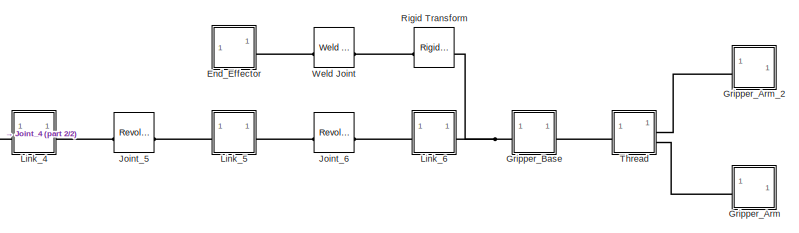
[diagram: root canvas - part 1/2, right side, full height]
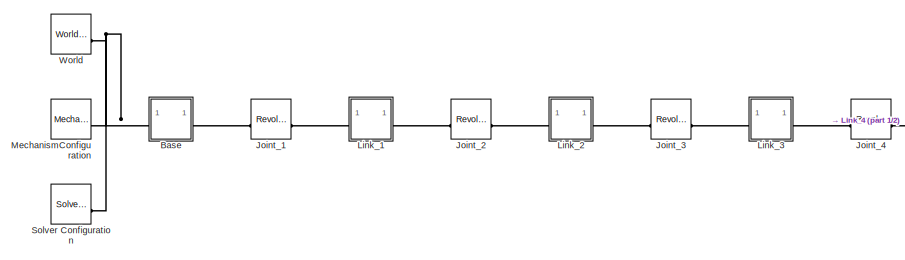
[diagram: root canvas - part 2/2, left side, full height]
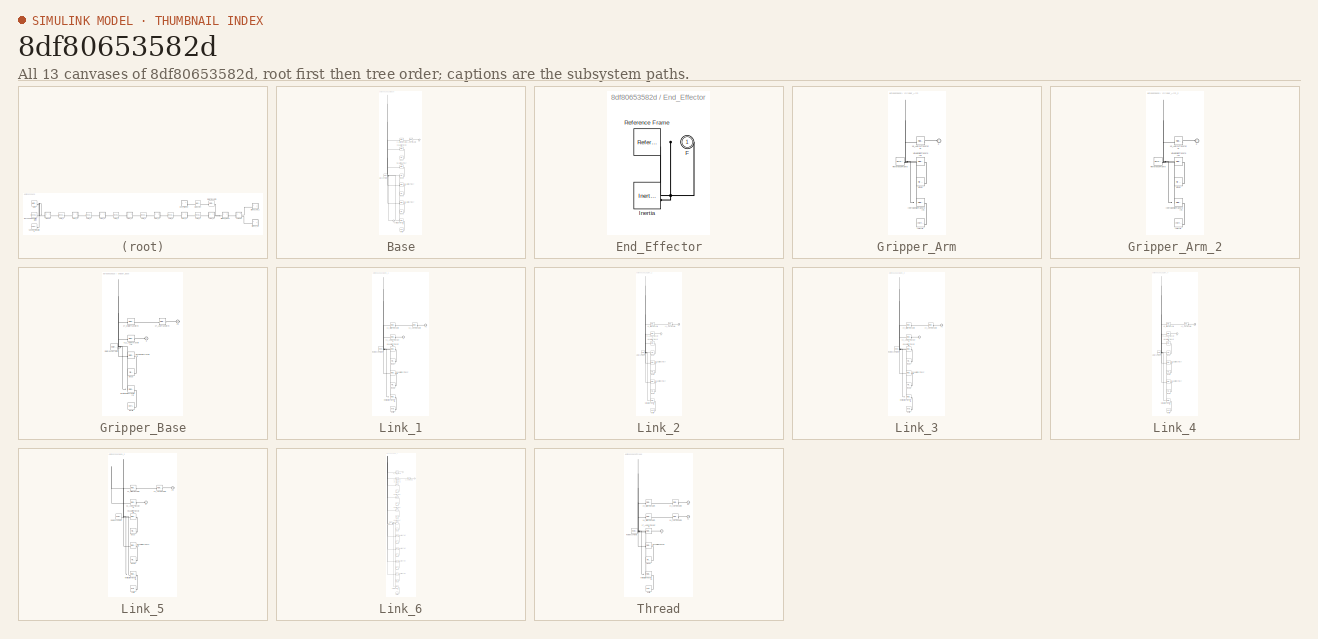
[diagram: thumbnail index - all 13 canvases of the model, root first then tree order]
MODEL slx_8df80653582d
KIND model
CONFIG AbsTol = auto
CONFIG EnableMultiTasking = off
CONFIG FixedStep = auto
CONFIG MaxStep = auto
CONFIG MinStep = auto
CONFIG RelTol = 1e-3
CONFIG SampleTimeConstraint = Unconstrained
CONFIG SolverName = VariableStepAuto
CONFIG StartTime = 0.0
CONFIG StopTime = 2
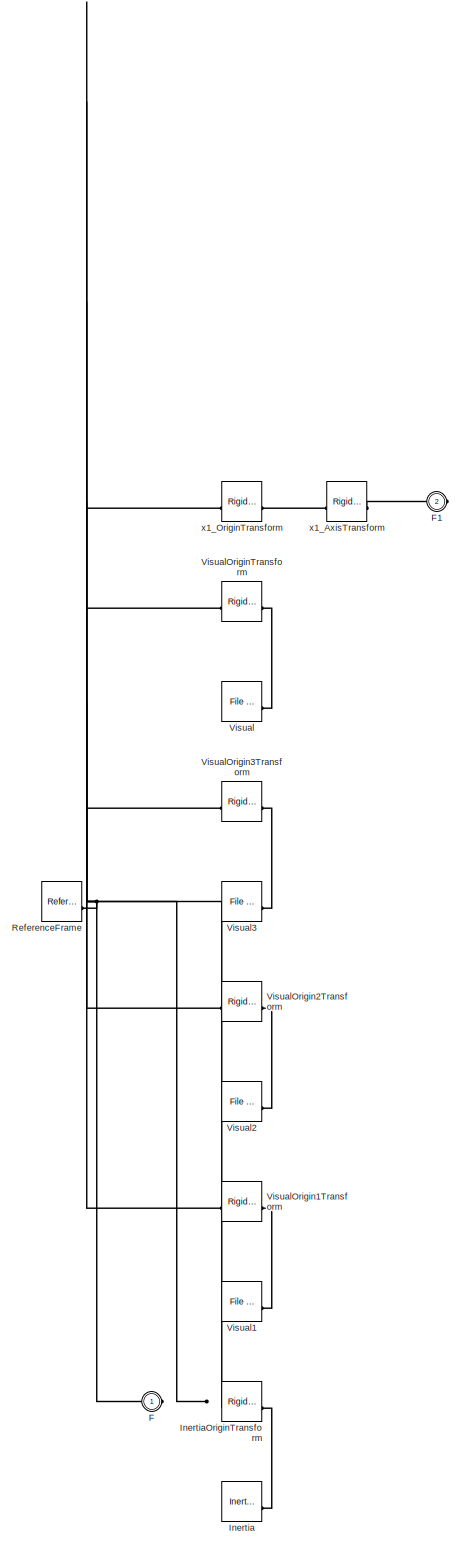
[diagram: Base - part 1/1, most of the canvas]
BLOCK [SubSystem] Base
BLOCK [PMIOPort] Base/F
  Side = Left
BLOCK [PMIOPort] Base/F1
  Port = 2
  Side = Right
BLOCK [Reference] Base/Inertia  REF=sm_lib/Body Elements/Inertia
  SourceBlock = sm_lib/Body Elements/Inertia
  SourceType = Inertia
BLOCK [Reference] Base/InertiaOriginTransform  REF=sm_lib/Frames and
Transforms/Rigid
Transform
  SourceBlock = sm_lib/Frames and\nTransforms/Rigid\nTransform
  SourceType = Rigid\nTransform
BLOCK [Reference] Base/ReferenceFrame  REF=sm_lib/Frames and
Transforms/Reference
Frame
  SourceBlock = sm_lib/Frames and\nTransforms/Reference\nFrame
  SourceType = Reference\nFrame
BLOCK [Reference] Base/Visual  REF=sm_lib/Body Elements/File Solid
  SourceBlock = sm_lib/Body Elements/File Solid
  SourceType = File Solid
BLOCK [Reference] Base/Visual1  REF=sm_lib/Body Elements/File Solid
  SourceBlock = sm_lib/Body Elements/File Solid
  SourceType = File Solid
BLOCK [Reference] Base/Visual2  REF=sm_lib/Body Elements/File Solid
  SourceBlock = sm_lib/Body Elements/File Solid
  SourceType = File Solid
BLOCK [Reference] Base/Visual3  REF=sm_lib/Body Elements/File Solid
  SourceBlock = sm_lib/Body Elements/File Solid
  SourceType = File Solid
BLOCK [Reference] Base/VisualOrigin1Transform  REF=sm_lib/Frames and
Transforms/Rigid
Transform
  SourceBlock = sm_lib/Frames and\nTransforms/Rigid\nTransform
  SourceType = Rigid\nTransform
BLOCK [Reference] Base/VisualOrigin2Transform  REF=sm_lib/Frames and
Transforms/Rigid
Transform
  SourceBlock = sm_lib/Frames and\nTransforms/Rigid\nTransform
  SourceType = Rigid\nTransform
BLOCK [Reference] Base/VisualOrigin3Transform  REF=sm_lib/Frames and
Transforms/Rigid
Transform
  SourceBlock = sm_lib/Frames and\nTransforms/Rigid\nTransform
  SourceType = Rigid\nTransform
BLOCK [Reference] Base/VisualOriginTransform  REF=sm_lib/Frames and
Transforms/Rigid
Transform
  SourceBlock = sm_lib/Frames and\nTransforms/Rigid\nTransform
  SourceType = Rigid\nTransform
BLOCK [Reference] Base/x1_AxisTransform  REF=sm_lib/Frames and
Transforms/Rigid
Transform
  SourceBlock = sm_lib/Frames and\nTransforms/Rigid\nTransform
  SourceType = Rigid\nTransform
BLOCK [Reference] Base/x1_OriginTransform  REF=sm_lib/Frames and
Transforms/Rigid
Transform
  SourceBlock = sm_lib/Frames and\nTransforms/Rigid\nTransform
  SourceType = Rigid\nTransform
BLOCK [SubSystem] End_Effector
BLOCK [PMIOPort] End_Effector/F
  Side = Right
BLOCK [Reference] End_Effector/Inertia  REF=sm_lib/Body Elements/Inertia
  SourceBlock = sm_lib/Body Elements/Inertia
  SourceType = Inertia
BLOCK [Reference] End_Effector/Reference Frame  REF=sm_lib/Frames and
Transforms/Reference
Frame
  SourceBlock = sm_lib/Frames and\nTransforms/Reference\nFrame
  SourceType = Reference\nFrame
BLOCK [SubSystem] Gripper_Arm
BLOCK [PMIOPort] Gripper_Arm/F
  Side = Left
BLOCK [Reference] Gripper_Arm/Inertia  REF=sm_lib/Body Elements/Inertia
  SourceBlock = sm_lib/Body Elements/Inertia
  SourceType = Inertia
BLOCK [Reference] Gripper_Arm/InertiaOriginTransform  REF=sm_lib/Frames and
Transforms/Rigid
Transform
  SourceBlock = sm_lib/Frames and\nTransforms/Rigid\nTransform
  SourceType = Rigid\nTransform
BLOCK [Reference] Gripper_Arm/ReferenceFrame  REF=sm_lib/Frames and
Transforms/Reference
Frame
  SourceBlock = sm_lib/Frames and\nTransforms/Reference\nFrame
  SourceType = Reference\nFrame
BLOCK [Reference] Gripper_Arm/Visual  REF=sm_lib/Body Elements/File Solid
  SourceBlock = sm_lib/Body Elements/File Solid
  SourceType = File Solid
BLOCK [Reference] Gripper_Arm/VisualOriginTransform  REF=sm_lib/Frames and
Transforms/Rigid
Transform
  SourceBlock = sm_lib/Frames and\nTransforms/Rigid\nTransform
  SourceType = Rigid\nTransform
BLOCK [Reference] Gripper_Arm/x8_AxisInvTransform  REF=sm_lib/Frames and
Transforms/Rigid
Transform
  SourceBlock = sm_lib/Frames and\nTransforms/Rigid\nTransform
  SourceType = Rigid\nTransform
BLOCK [SubSystem] Gripper_Arm_2
BLOCK [PMIOPort] Gripper_Arm_2/F
  Side = Left
BLOCK [Reference] Gripper_Arm_2/Inertia  REF=sm_lib/Body Elements/Inertia
  SourceBlock = sm_lib/Body Elements/Inertia
  SourceType = Inertia
BLOCK [Reference] Gripper_Arm_2/InertiaOriginTransform  REF=sm_lib/Frames and
Transforms/Rigid
Transform
  SourceBlock = sm_lib/Frames and\nTransforms/Rigid\nTransform
  SourceType = Rigid\nTransform
BLOCK [Reference] Gripper_Arm_2/ReferenceFrame  REF=sm_lib/Frames and
Transforms/Reference
Frame
  SourceBlock = sm_lib/Frames and\nTransforms/Reference\nFrame
  SourceType = Reference\nFrame
BLOCK [Reference] Gripper_Arm_2/Visual  REF=sm_lib/Body Elements/File Solid
  SourceBlock = sm_lib/Body Elements/File Solid
  SourceType = File Solid
BLOCK [Reference] Gripper_Arm_2/VisualOriginTransform  REF=sm_lib/Frames and
Transforms/Rigid
Transform
  SourceBlock = sm_lib/Frames and\nTransforms/Rigid\nTransform
  SourceType = Rigid\nTransform
BLOCK [Reference] Gripper_Arm_2/x9_AxisInvTransform  REF=sm_lib/Frames and
Transforms/Rigid
Transform
  SourceBlock = sm_lib/Frames and\nTransforms/Rigid\nTransform
  SourceType = Rigid\nTransform
BLOCK [SubSystem] Gripper_Base
BLOCK [PMIOPort] Gripper_Base/F
  Side = Left
BLOCK [PMIOPort] Gripper_Base/F1
  Port = 2
  Side = Right
BLOCK [Reference] Gripper_Base/Inertia  REF=sm_lib/Body Elements/Inertia
  SourceBlock = sm_lib/Body Elements/Inertia
  SourceType = Inertia
BLOCK [Reference] Gripper_Base/InertiaOriginTransform  REF=sm_lib/Frames and
Transforms/Rigid
Transform
  SourceBlock = sm_lib/Frames and\nTransforms/Rigid\nTransform
  SourceType = Rigid\nTransform
BLOCK [Reference] Gripper_Base/ReferenceFrame  REF=sm_lib/Frames and
Transforms/Reference
Frame
  SourceBlock = sm_lib/Frames and\nTransforms/Reference\nFrame
  SourceType = Reference\nFrame
BLOCK [Reference] Gripper_Base/Visual  REF=sm_lib/Body Elements/File Solid
  SourceBlock = sm_lib/Body Elements/File Solid
  SourceType = File Solid
BLOCK [Reference] Gripper_Base/VisualOriginTransform  REF=sm_lib/Frames and
Transforms/Rigid
Transform
  SourceBlock = sm_lib/Frames and\nTransforms/Rigid\nTransform
  SourceType = Rigid\nTransform
BLOCK [Reference] Gripper_Base/x12_AxisInvTransform  REF=sm_lib/Frames and
Transforms/Rigid
Transform
  SourceBlock = sm_lib/Frames and\nTransforms/Rigid\nTransform
  SourceType = Rigid\nTransform
BLOCK [Reference] Gripper_Base/x7_AxisTransform  REF=sm_lib/Frames and
Transforms/Rigid
Transform
  SourceBlock = sm_lib/Frames and\nTransforms/Rigid\nTransform
  SourceType = Rigid\nTransform
BLOCK [Reference] Gripper_Base/x7_OriginTransform  REF=sm_lib/Frames and
Transforms/Rigid
Transform
  SourceBlock = sm_lib/Frames and\nTransforms/Rigid\nTransform
  SourceType = Rigid\nTransform
BLOCK [Reference] Joint_1  REF=sm_lib/Joints/Revolute Joint
  SourceBlock = sm_lib/Joints/Revolute Joint
  SourceType = Revolute Joint
BLOCK [Reference] Joint_2  REF=sm_lib/Joints/Revolute Joint
  SourceBlock = sm_lib/Joints/Revolute Joint
  SourceType = Revolute Joint
BLOCK [Reference] Joint_3  REF=sm_lib/Joints/Revolute Joint
  SourceBlock = sm_lib/Joints/Revolute Joint
  SourceType = Revolute Joint
BLOCK [Reference] Joint_4  REF=sm_lib/Joints/Revolute Joint
  SourceBlock = sm_lib/Joints/Revolute Joint
  SourceType = Revolute Joint
BLOCK [Reference] Joint_5  REF=sm_lib/Joints/Revolute Joint
  SourceBlock = sm_lib/Joints/Revolute Joint
  SourceType = Revolute Joint
BLOCK [Reference] Joint_6  REF=sm_lib/Joints/Revolute Joint
  SourceBlock = sm_lib/Joints/Revolute Joint
  SourceType = Revolute Joint
BLOCK [SubSystem] Link_1
BLOCK [PMIOPort] Link_1/F
  Side = Left
BLOCK [PMIOPort] Link_1/F1
  Port = 2
  Side = Right
BLOCK [Reference] Link_1/Inertia  REF=sm_lib/Body Elements/Inertia
  SourceBlock = sm_lib/Body Elements/Inertia
  SourceType = Inertia
BLOCK [Reference] Link_1/InertiaOriginTransform  REF=sm_lib/Frames and
Transforms/Rigid
Transform
  SourceBlock = sm_lib/Frames and\nTransforms/Rigid\nTransform
  SourceType = Rigid\nTransform
BLOCK [Reference] Link_1/ReferenceFrame  REF=sm_lib/Frames and
Transforms/Reference
Frame
  SourceBlock = sm_lib/Frames and\nTransforms/Reference\nFrame
  SourceType = Reference\nFrame
BLOCK [Reference] Link_1/Visual  REF=sm_lib/Body Elements/File Solid
  SourceBlock = sm_lib/Body Elements/File Solid
  SourceType = File Solid
BLOCK [Reference] Link_1/Visual1  REF=sm_lib/Body Elements/File Solid
  SourceBlock = sm_lib/Body Elements/File Solid
  SourceType = File Solid
BLOCK [Reference] Link_1/VisualOrigin1Transform  REF=sm_lib/Frames and
Transforms/Rigid
Transform
  SourceBlock = sm_lib/Frames and\nTransforms/Rigid\nTransform
  SourceType = Rigid\nTransform
BLOCK [Reference] Link_1/VisualOriginTransform  REF=sm_lib/Frames and
Transforms/Rigid
Transform
  SourceBlock = sm_lib/Frames and\nTransforms/Rigid\nTransform
  SourceType = Rigid\nTransform
BLOCK [Reference] Link_1/x1_AxisInvTransform  REF=sm_lib/Frames and
Transforms/Rigid
Transform
  SourceBlock = sm_lib/Frames and\nTransforms/Rigid\nTransform
  SourceType = Rigid\nTransform
BLOCK [Reference] Link_1/x2_AxisTransform  REF=sm_lib/Frames and
Transforms/Rigid
Transform
  SourceBlock = sm_lib/Frames and\nTransforms/Rigid\nTransform
  SourceType = Rigid\nTransform
BLOCK [Reference] Link_1/x2_OriginTransform  REF=sm_lib/Frames and
Transforms/Rigid
Transform
  SourceBlock = sm_lib/Frames and\nTransforms/Rigid\nTransform
  SourceType = Rigid\nTransform
BLOCK [SubSystem] Link_2
BLOCK [PMIOPort] Link_2/F
  Side = Left
BLOCK [PMIOPort] Link_2/F1
  Port = 2
  Side = Right
BLOCK [Reference] Link_2/Inertia  REF=sm_lib/Body Elements/Inertia
  SourceBlock = sm_lib/Body Elements/Inertia
  SourceType = Inertia
BLOCK [Reference] Link_2/InertiaOriginTransform  REF=sm_lib/Frames and
Transforms/Rigid
Transform
  SourceBlock = sm_lib/Frames and\nTransforms/Rigid\nTransform
  SourceType = Rigid\nTransform
BLOCK [Reference] Link_2/ReferenceFrame  REF=sm_lib/Frames and
Transforms/Reference
Frame
  SourceBlock = sm_lib/Frames and\nTransforms/Reference\nFrame
  SourceType = Reference\nFrame
BLOCK [Reference] Link_2/Visual  REF=sm_lib/Body Elements/File Solid
  SourceBlock = sm_lib/Body Elements/File Solid
  SourceType = File Solid
BLOCK [Reference] Link_2/Visual1  REF=sm_lib/Body Elements/File Solid
  SourceBlock = sm_lib/Body Elements/File Solid
  SourceType = File Solid
BLOCK [Reference] Link_2/Visual2  REF=sm_lib/Body Elements/File Solid
  SourceBlock = sm_lib/Body Elements/File Solid
  SourceType = File Solid
BLOCK [Reference] Link_2/VisualOrigin1Transform  REF=sm_lib/Frames and
Transforms/Rigid
Transform
  SourceBlock = sm_lib/Frames and\nTransforms/Rigid\nTransform
  SourceType = Rigid\nTransform
BLOCK [Reference] Link_2/VisualOrigin2Transform  REF=sm_lib/Frames and
Transforms/Rigid
Transform
  SourceBlock = sm_lib/Frames and\nTransforms/Rigid\nTransform
  SourceType = Rigid\nTransform
BLOCK [Reference] Link_2/VisualOriginTransform  REF=sm_lib/Frames and
Transforms/Rigid
Transform
  SourceBlock = sm_lib/Frames and\nTransforms/Rigid\nTransform
  SourceType = Rigid\nTransform
BLOCK [Reference] Link_2/x2_AxisInvTransform  REF=sm_lib/Frames and
Transforms/Rigid
Transform
  SourceBlock = sm_lib/Frames and\nTransforms/Rigid\nTransform
  SourceType = Rigid\nTransform
BLOCK [Reference] Link_2/x3_AxisTransform  REF=sm_lib/Frames and
Transforms/Rigid
Transform
  SourceBlock = sm_lib/Frames and\nTransforms/Rigid\nTransform
  SourceType = Rigid\nTransform
BLOCK [Reference] Link_2/x3_OriginTransform  REF=sm_lib/Frames and
Transforms/Rigid
Transform
  SourceBlock = sm_lib/Frames and\nTransforms/Rigid\nTransform
  SourceType = Rigid\nTransform
BLOCK [SubSystem] Link_3
BLOCK [PMIOPort] Link_3/F
  Side = Left
BLOCK [PMIOPort] Link_3/F1
  Port = 2
  Side = Right
BLOCK [Reference] Link_3/Inertia  REF=sm_lib/Body Elements/Inertia
  SourceBlock = sm_lib/Body Elements/Inertia
  SourceType = Inertia
BLOCK [Reference] Link_3/InertiaOriginTransform  REF=sm_lib/Frames and
Transforms/Rigid
Transform
  SourceBlock = sm_lib/Frames and\nTransforms/Rigid\nTransform
  SourceType = Rigid\nTransform
BLOCK [Reference] Link_3/ReferenceFrame  REF=sm_lib/Frames and
Transforms/Reference
Frame
  SourceBlock = sm_lib/Frames and\nTransforms/Reference\nFrame
  SourceType = Reference\nFrame
BLOCK [Reference] Link_3/Visual  REF=sm_lib/Body Elements/File Solid
  SourceBlock = sm_lib/Body Elements/File Solid
  SourceType = File Solid
BLOCK [Reference] Link_3/Visual1  REF=sm_lib/Body Elements/File Solid
  SourceBlock = sm_lib/Body Elements/File Solid
  SourceType = File Solid
BLOCK [Reference] Link_3/VisualOrigin1Transform  REF=sm_lib/Frames and
Transforms/Rigid
Transform
  SourceBlock = sm_lib/Frames and\nTransforms/Rigid\nTransform
  SourceType = Rigid\nTransform
BLOCK [Reference] Link_3/VisualOriginTransform  REF=sm_lib/Frames and
Transforms/Rigid
Transform
  SourceBlock = sm_lib/Frames and\nTransforms/Rigid\nTransform
  SourceType = Rigid\nTransform
BLOCK [Reference] Link_3/x3_AxisInvTransform  REF=sm_lib/Frames and
Transforms/Rigid
Transform
  SourceBlock = sm_lib/Frames and\nTransforms/Rigid\nTransform
  SourceType = Rigid\nTransform
BLOCK [Reference] Link_3/x4_AxisTransform  REF=sm_lib/Frames and
Transforms/Rigid
Transform
  SourceBlock = sm_lib/Frames and\nTransforms/Rigid\nTransform
  SourceType = Rigid\nTransform
BLOCK [Reference] Link_3/x4_OriginTransform  REF=sm_lib/Frames and
Transforms/Rigid
Transform
  SourceBlock = sm_lib/Frames and\nTransforms/Rigid\nTransform
  SourceType = Rigid\nTransform
BLOCK [SubSystem] Link_4
BLOCK [PMIOPort] Link_4/F
  Side = Left
BLOCK [PMIOPort] Link_4/F1
  Port = 2
  Side = Right
BLOCK [Reference] Link_4/Inertia  REF=sm_lib/Body Elements/Inertia
  SourceBlock = sm_lib/Body Elements/Inertia
  SourceType = Inertia
BLOCK [Reference] Link_4/InertiaOriginTransform  REF=sm_lib/Frames and
Transforms/Rigid
Transform
  SourceBlock = sm_lib/Frames and\nTransforms/Rigid\nTransform
  SourceType = Rigid\nTransform
BLOCK [Reference] Link_4/ReferenceFrame  REF=sm_lib/Frames and
Transforms/Reference
Frame
  SourceBlock = sm_lib/Frames and\nTransforms/Reference\nFrame
  SourceType = Reference\nFrame
BLOCK [Reference] Link_4/Visual  REF=sm_lib/Body Elements/File Solid
  SourceBlock = sm_lib/Body Elements/File Solid
  SourceType = File Solid
BLOCK [Reference] Link_4/Visual1  REF=sm_lib/Body Elements/File Solid
  SourceBlock = sm_lib/Body Elements/File Solid
  SourceType = File Solid
BLOCK [Reference] Link_4/Visual2  REF=sm_lib/Body Elements/File Solid
  SourceBlock = sm_lib/Body Elements/File Solid
  SourceType = File Solid
BLOCK [Reference] Link_4/VisualOrigin1Transform  REF=sm_lib/Frames and
Transforms/Rigid
Transform
  SourceBlock = sm_lib/Frames and\nTransforms/Rigid\nTransform
  SourceType = Rigid\nTransform
BLOCK [Reference] Link_4/VisualOrigin2Transform  REF=sm_lib/Frames and
Transforms/Rigid
Transform
  SourceBlock = sm_lib/Frames and\nTransforms/Rigid\nTransform
  SourceType = Rigid\nTransform
BLOCK [Reference] Link_4/VisualOriginTransform  REF=sm_lib/Frames and
Transforms/Rigid
Transform
  SourceBlock = sm_lib/Frames and\nTransforms/Rigid\nTransform
  SourceType = Rigid\nTransform
BLOCK [Reference] Link_4/x4_AxisInvTransform  REF=sm_lib/Frames and
Transforms/Rigid
Transform
  SourceBlock = sm_lib/Frames and\nTransforms/Rigid\nTransform
  SourceType = Rigid\nTransform
BLOCK [Reference] Link_4/x5_AxisTransform  REF=sm_lib/Frames and
Transforms/Rigid
Transform
  SourceBlock = sm_lib/Frames and\nTransforms/Rigid\nTransform
  SourceType = Rigid\nTransform
BLOCK [Reference] Link_4/x5_OriginTransform  REF=sm_lib/Frames and
Transforms/Rigid
Transform
  SourceBlock = sm_lib/Frames and\nTransforms/Rigid\nTransform
  SourceType = Rigid\nTransform
BLOCK [SubSystem] Link_5
BLOCK [PMIOPort] Link_5/F
  Side = Left
BLOCK [PMIOPort] Link_5/F1
  Port = 2
  Side = Right
BLOCK [Reference] Link_5/Inertia  REF=sm_lib/Body Elements/Inertia
  SourceBlock = sm_lib/Body Elements/Inertia
  SourceType = Inertia
BLOCK [Reference] Link_5/InertiaOriginTransform  REF=sm_lib/Frames and
Transforms/Rigid
Transform
  SourceBlock = sm_lib/Frames and\nTransforms/Rigid\nTransform
  SourceType = Rigid\nTransform
BLOCK [Reference] Link_5/ReferenceFrame  REF=sm_lib/Frames and
Transforms/Reference
Frame
  SourceBlock = sm_lib/Frames and\nTransforms/Reference\nFrame
  SourceType = Reference\nFrame
BLOCK [Reference] Link_5/Visual  REF=sm_lib/Body Elements/File Solid
  SourceBlock = sm_lib/Body Elements/File Solid
  SourceType = File Solid
BLOCK [Reference] Link_5/Visual1  REF=sm_lib/Body Elements/File Solid
  SourceBlock = sm_lib/Body Elements/File Solid
  SourceType = File Solid
BLOCK [Reference] Link_5/VisualOrigin1Transform  REF=sm_lib/Frames and
Transforms/Rigid
Transform
  SourceBlock = sm_lib/Frames and\nTransforms/Rigid\nTransform
  SourceType = Rigid\nTransform
BLOCK [Reference] Link_5/VisualOriginTransform  REF=sm_lib/Frames and
Transforms/Rigid
Transform
  SourceBlock = sm_lib/Frames and\nTransforms/Rigid\nTransform
  SourceType = Rigid\nTransform
BLOCK [Reference] Link_5/x5_AxisInvTransform  REF=sm_lib/Frames and
Transforms/Rigid
Transform
  SourceBlock = sm_lib/Frames and\nTransforms/Rigid\nTransform
  SourceType = Rigid\nTransform
BLOCK [Reference] Link_5/x6_AxisTransform  REF=sm_lib/Frames and
Transforms/Rigid
Transform
  SourceBlock = sm_lib/Frames and\nTransforms/Rigid\nTransform
  SourceType = Rigid\nTransform
BLOCK [Reference] Link_5/x6_OriginTransform  REF=sm_lib/Frames and
Transforms/Rigid
Transform
  SourceBlock = sm_lib/Frames and\nTransforms/Rigid\nTransform
  SourceType = Rigid\nTransform
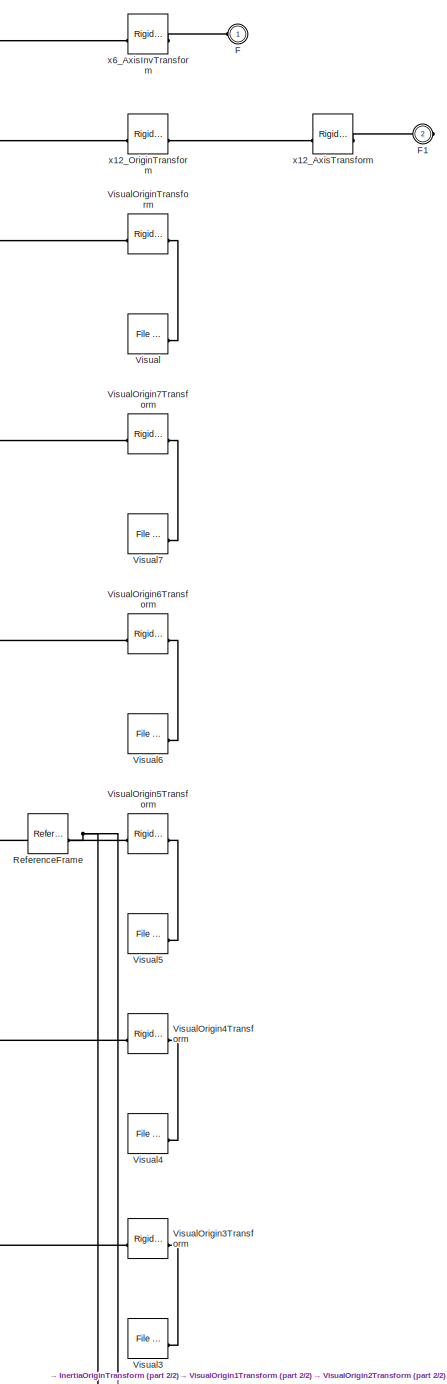
[diagram: Link_6 - part 1/2, full width, middle band]
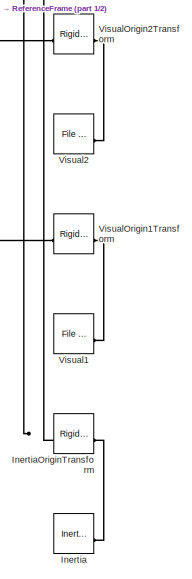
[diagram: Link_6 - part 2/2, bottom center region]
BLOCK [SubSystem] Link_6
BLOCK [PMIOPort] Link_6/F
  Side = Left
BLOCK [PMIOPort] Link_6/F1
  Port = 2
  Side = Right
BLOCK [Reference] Link_6/Inertia  REF=sm_lib/Body Elements/Inertia
  SourceBlock = sm_lib/Body Elements/Inertia
  SourceType = Inertia
BLOCK [Reference] Link_6/InertiaOriginTransform  REF=sm_lib/Frames and
Transforms/Rigid
Transform
  SourceBlock = sm_lib/Frames and\nTransforms/Rigid\nTransform
  SourceType = Rigid\nTransform
BLOCK [Reference] Link_6/ReferenceFrame  REF=sm_lib/Frames and
Transforms/Reference
Frame
  SourceBlock = sm_lib/Frames and\nTransforms/Reference\nFrame
  SourceType = Reference\nFrame
BLOCK [Reference] Link_6/Visual  REF=sm_lib/Body Elements/File Solid
  SourceBlock = sm_lib/Body Elements/File Solid
  SourceType = File Solid
BLOCK [Reference] Link_6/Visual1  REF=sm_lib/Body Elements/File Solid
  SourceBlock = sm_lib/Body Elements/File Solid
  SourceType = File Solid
BLOCK [Reference] Link_6/Visual2  REF=sm_lib/Body Elements/File Solid
  SourceBlock = sm_lib/Body Elements/File Solid
  SourceType = File Solid
BLOCK [Reference] Link_6/Visual3  REF=sm_lib/Body Elements/File Solid
  SourceBlock = sm_lib/Body Elements/File Solid
  SourceType = File Solid
BLOCK [Reference] Link_6/Visual4  REF=sm_lib/Body Elements/File Solid
  SourceBlock = sm_lib/Body Elements/File Solid
  SourceType = File Solid
BLOCK [Reference] Link_6/Visual5  REF=sm_lib/Body Elements/File Solid
  SourceBlock = sm_lib/Body Elements/File Solid
  SourceType = File Solid
BLOCK [Reference] Link_6/Visual6  REF=sm_lib/Body Elements/File Solid
  SourceBlock = sm_lib/Body Elements/File Solid
  SourceType = File Solid
BLOCK [Reference] Link_6/Visual7  REF=sm_lib/Body Elements/File Solid
  SourceBlock = sm_lib/Body Elements/File Solid
  SourceType = File Solid
BLOCK [Reference] Link_6/VisualOrigin1Transform  REF=sm_lib/Frames and
Transforms/Rigid
Transform
  SourceBlock = sm_lib/Frames and\nTransforms/Rigid\nTransform
  SourceType = Rigid\nTransform
BLOCK [Reference] Link_6/VisualOrigin2Transform  REF=sm_lib/Frames and
Transforms/Rigid
Transform
  SourceBlock = sm_lib/Frames and\nTransforms/Rigid\nTransform
  SourceType = Rigid\nTransform
BLOCK [Reference] Link_6/VisualOrigin3Transform  REF=sm_lib/Frames and
Transforms/Rigid
Transform
  SourceBlock = sm_lib/Frames and\nTransforms/Rigid\nTransform
  SourceType = Rigid\nTransform
BLOCK [Reference] Link_6/VisualOrigin4Transform  REF=sm_lib/Frames and
Transforms/Rigid
Transform
  SourceBlock = sm_lib/Frames and\nTransforms/Rigid\nTransform
  SourceType = Rigid\nTransform
BLOCK [Reference] Link_6/VisualOrigin5Transform  REF=sm_lib/Frames and
Transforms/Rigid
Transform
  SourceBlock = sm_lib/Frames and\nTransforms/Rigid\nTransform
  SourceType = Rigid\nTransform
BLOCK [Reference] Link_6/VisualOrigin6Transform  REF=sm_lib/Frames and
Transforms/Rigid
Transform
  SourceBlock = sm_lib/Frames and\nTransforms/Rigid\nTransform
  SourceType = Rigid\nTransform
BLOCK [Reference] Link_6/VisualOrigin7Transform  REF=sm_lib/Frames and
Transforms/Rigid
Transform
  SourceBlock = sm_lib/Frames and\nTransforms/Rigid\nTransform
  SourceType = Rigid\nTransform
BLOCK [Reference] Link_6/VisualOriginTransform  REF=sm_lib/Frames and
Transforms/Rigid
Transform
  SourceBlock = sm_lib/Frames and\nTransforms/Rigid\nTransform
  SourceType = Rigid\nTransform
BLOCK [Reference] Link_6/x12_AxisTransform  REF=sm_lib/Frames and
Transforms/Rigid
Transform
  SourceBlock = sm_lib/Frames and\nTransforms/Rigid\nTransform
  SourceType = Rigid\nTransform
BLOCK [Reference] Link_6/x12_OriginTransform  REF=sm_lib/Frames and
Transforms/Rigid
Transform
  SourceBlock = sm_lib/Frames and\nTransforms/Rigid\nTransform
  SourceType = Rigid\nTransform
BLOCK [Reference] Link_6/x6_AxisInvTransform  REF=sm_lib/Frames and
Transforms/Rigid
Transform
  SourceBlock = sm_lib/Frames and\nTransforms/Rigid\nTransform
  SourceType = Rigid\nTransform
BLOCK [Reference] MechanismConfiguration  REF=sm_lib/Utilities/Mechanism
Configuration
  SourceBlock = sm_lib/Utilities/Mechanism\nConfiguration
  SourceType = Mechanism\nConfiguration
BLOCK [Reference] Rigid Transform  REF=sm_lib/Frames and
Transforms/Rigid
Transform
  NameLocation = top
  SourceBlock = sm_lib/Frames and\nTransforms/Rigid\nTransform
  SourceType = Rigid\nTransform
BLOCK [Reference] Solver Configuration  REF=nesl_utility/Solver
Configuration
  SourceBlock = nesl_utility/Solver\nConfiguration
  SourceType = Solver\nConfiguration
BLOCK [SubSystem] Thread
BLOCK [PMIOPort] Thread/F
  Side = Left
BLOCK [PMIOPort] Thread/F1
  Port = 3
  Side = Right
BLOCK [PMIOPort] Thread/F2
  Port = 2
  Side = Right
BLOCK [Reference] Thread/Inertia  REF=sm_lib/Body Elements/Inertia
  SourceBlock = sm_lib/Body Elements/Inertia
  SourceType = Inertia
BLOCK [Reference] Thread/InertiaOriginTransform  REF=sm_lib/Frames and
Transforms/Rigid
Transform
  SourceBlock = sm_lib/Frames and\nTransforms/Rigid\nTransform
  SourceType = Rigid\nTransform
BLOCK [Reference] Thread/ReferenceFrame  REF=sm_lib/Frames and
Transforms/Reference
Frame
  SourceBlock = sm_lib/Frames and\nTransforms/Reference\nFrame
  SourceType = Reference\nFrame
BLOCK [Reference] Thread/Visual  REF=sm_lib/Body Elements/File Solid
  SourceBlock = sm_lib/Body Elements/File Solid
  SourceType = File Solid
BLOCK [Reference] Thread/VisualOriginTransform  REF=sm_lib/Frames and
Transforms/Rigid
Transform
  SourceBlock = sm_lib/Frames and\nTransforms/Rigid\nTransform
  SourceType = Rigid\nTransform
BLOCK [Reference] Thread/x7_AxisInvTransform  REF=sm_lib/Frames and
Transforms/Rigid
Transform
  SourceBlock = sm_lib/Frames and\nTransforms/Rigid\nTransform
  SourceType = Rigid\nTransform
BLOCK [Reference] Thread/x8_AxisTransform  REF=sm_lib/Frames and
Transforms/Rigid
Transform
  SourceBlock = sm_lib/Frames and\nTransforms/Rigid\nTransform
  SourceType = Rigid\nTransform
BLOCK [Reference] Thread/x8_OriginTransform  REF=sm_lib/Frames and
Transforms/Rigid
Transform
  SourceBlock = sm_lib/Frames and\nTransforms/Rigid\nTransform
  SourceType = Rigid\nTransform
BLOCK [Reference] Thread/x9_AxisTransform  REF=sm_lib/Frames and
Transforms/Rigid
Transform
  SourceBlock = sm_lib/Frames and\nTransforms/Rigid\nTransform
  SourceType = Rigid\nTransform
BLOCK [Reference] Thread/x9_OriginTransform  REF=sm_lib/Frames and
Transforms/Rigid
Transform
  SourceBlock = sm_lib/Frames and\nTransforms/Rigid\nTransform
  SourceType = Rigid\nTransform
BLOCK [Reference] Weld Joint  REF=sm_lib/Joints/Weld Joint
  SourceBlock = sm_lib/Joints/Weld Joint
  SourceType = Weld Joint
BLOCK [Reference] World  REF=sm_lib/Frames and
Transforms/World Frame
  SourceBlock = sm_lib/Frames and\nTransforms/World Frame
  SourceType = World Frame
PLINE Base/F1:RConn1 -- Base/x1_AxisTransform:RConn1
PNET net1: Base/F:RConn1 -- Base/InertiaOriginTransform:LConn1 -- Base/ReferenceFrame:RConn1 -- Base/VisualOrigin1Transform:LConn1 -- Base/VisualOrigin2Transform:LConn1 -- Base/VisualOrigin3Transform:LConn1 -- Base/VisualOriginTransform:LConn1 -- Base/x1_OriginTransform:LConn1
PLINE Base/Inertia:RConn1 -- Base/InertiaOriginTransform:RConn1
PLINE Base/Visual1:RConn1 -- Base/VisualOrigin1Transform:RConn1
PLINE Base/Visual2:RConn1 -- Base/VisualOrigin2Transform:RConn1
PLINE Base/Visual3:RConn1 -- Base/VisualOrigin3Transform:RConn1
PLINE Base/Visual:RConn1 -- Base/VisualOriginTransform:RConn1
PLINE Base/x1_AxisTransform:LConn1 -- Base/x1_OriginTransform:RConn1
PNET net2: Base:LConn1 -- MechanismConfiguration:RConn1 -- Solver Configuration:RConn1 -- World:RConn1
PLINE Base:RConn1 -- Joint_1:LConn1
PNET net3: End_Effector/F:RConn1 -- End_Effector/Inertia:RConn1 -- End_Effector/Reference Frame:RConn1
PLINE End_Effector:RConn1 -- Weld Joint:RConn1
PLINE Gripper_Arm/F:RConn1 -- Gripper_Arm/x8_AxisInvTransform:RConn1
PLINE Gripper_Arm/Inertia:RConn1 -- Gripper_Arm/InertiaOriginTransform:RConn1
PNET net4: Gripper_Arm/InertiaOriginTransform:LConn1 -- Gripper_Arm/ReferenceFrame:RConn1 -- Gripper_Arm/VisualOriginTransform:LConn1 -- Gripper_Arm/x8_AxisInvTransform:LConn1
PLINE Gripper_Arm/Visual:RConn1 -- Gripper_Arm/VisualOriginTransform:RConn1
PLINE Gripper_Arm:LConn1 -- Thread:RConn2
PLINE Gripper_Arm_2/F:RConn1 -- Gripper_Arm_2/x9_AxisInvTransform:RConn1
PLINE Gripper_Arm_2/Inertia:RConn1 -- Gripper_Arm_2/InertiaOriginTransform:RConn1
PNET net5: Gripper_Arm_2/InertiaOriginTransform:LConn1 -- Gripper_Arm_2/ReferenceFrame:RConn1 -- Gripper_Arm_2/VisualOriginTransform:LConn1 -- Gripper_Arm_2/x9_AxisInvTransform:LConn1
PLINE Gripper_Arm_2/Visual:RConn1 -- Gripper_Arm_2/VisualOriginTransform:RConn1
PLINE Gripper_Arm_2:LConn1 -- Thread:RConn1
PLINE Gripper_Base/F1:RConn1 -- Gripper_Base/x7_AxisTransform:RConn1
PLINE Gripper_Base/F:RConn1 -- Gripper_Base/x12_AxisInvTransform:RConn1
PLINE Gripper_Base/Inertia:RConn1 -- Gripper_Base/InertiaOriginTransform:RConn1
PNET net6: Gripper_Base/InertiaOriginTransform:LConn1 -- Gripper_Base/ReferenceFrame:RConn1 -- Gripper_Base/VisualOriginTransform:LConn1 -- Gripper_Base/x12_AxisInvTransform:LConn1 -- Gripper_Base/x7_OriginTransform:LConn1
PLINE Gripper_Base/Visual:RConn1 -- Gripper_Base/VisualOriginTransform:RConn1
PLINE Gripper_Base/x7_AxisTransform:LConn1 -- Gripper_Base/x7_OriginTransform:RConn1
PNET net7: Gripper_Base:LConn1 -- Link_6:RConn1 -- Rigid Transform:LConn1
PLINE Gripper_Base:RConn1 -- Thread:LConn1
PLINE Joint_1:RConn1 -- Link_1:LConn1
PLINE Joint_2:LConn1 -- Link_1:RConn1
PLINE Joint_2:RConn1 -- Link_2:LConn1
PLINE Joint_3:LConn1 -- Link_2:RConn1
PLINE Joint_3:RConn1 -- Link_3:LConn1
PLINE Joint_4:LConn1 -- Link_3:RConn1
PLINE Joint_4:RConn1 -- Link_4:LConn1
PLINE Joint_5:LConn1 -- Link_4:RConn1
PLINE Joint_5:RConn1 -- Link_5:LConn1
PLINE Joint_6:LConn1 -- Link_5:RConn1
PLINE Joint_6:RConn1 -- Link_6:LConn1
PLINE Link_1/F1:RConn1 -- Link_1/x2_AxisTransform:RConn1
PLINE Link_1/F:RConn1 -- Link_1/x1_AxisInvTransform:RConn1
PLINE Link_1/Inertia:RConn1 -- Link_1/InertiaOriginTransform:RConn1
PNET net8: Link_1/InertiaOriginTransform:LConn1 -- Link_1/ReferenceFrame:RConn1 -- Link_1/VisualOrigin1Transform:LConn1 -- Link_1/VisualOriginTransform:LConn1 -- Link_1/x1_AxisInvTransform:LConn1 -- Link_1/x2_OriginTransform:LConn1
PLINE Link_1/Visual1:RConn1 -- Link_1/VisualOrigin1Transform:RConn1
PLINE Link_1/Visual:RConn1 -- Link_1/VisualOriginTransform:RConn1
PLINE Link_1/x2_AxisTransform:LConn1 -- Link_1/x2_OriginTransform:RConn1
PLINE Link_2/F1:RConn1 -- Link_2/x3_AxisTransform:RConn1
PLINE Link_2/F:RConn1 -- Link_2/x2_AxisInvTransform:RConn1
PLINE Link_2/Inertia:RConn1 -- Link_2/InertiaOriginTransform:RConn1
PNET net9: Link_2/InertiaOriginTransform:LConn1 -- Link_2/ReferenceFrame:RConn1 -- Link_2/VisualOrigin1Transform:LConn1 -- Link_2/VisualOrigin2Transform:LConn1 -- Link_2/VisualOriginTransform:LConn1 -- Link_2/x2_AxisInvTransform:LConn1 -- Link_2/x3_OriginTransform:LConn1
PLINE Link_2/Visual1:RConn1 -- Link_2/VisualOrigin1Transform:RConn1
PLINE Link_2/Visual2:RConn1 -- Link_2/VisualOrigin2Transform:RConn1
PLINE Link_2/Visual:RConn1 -- Link_2/VisualOriginTransform:RConn1
PLINE Link_2/x3_AxisTransform:LConn1 -- Link_2/x3_OriginTransform:RConn1
PLINE Link_3/F1:RConn1 -- Link_3/x4_AxisTransform:RConn1
PLINE Link_3/F:RConn1 -- Link_3/x3_AxisInvTransform:RConn1
PLINE Link_3/Inertia:RConn1 -- Link_3/InertiaOriginTransform:RConn1
PNET net10: Link_3/InertiaOriginTransform:LConn1 -- Link_3/ReferenceFrame:RConn1 -- Link_3/VisualOrigin1Transform:LConn1 -- Link_3/VisualOriginTransform:LConn1 -- Link_3/x3_AxisInvTransform:LConn1 -- Link_3/x4_OriginTransform:LConn1
PLINE Link_3/Visual1:RConn1 -- Link_3/VisualOrigin1Transform:RConn1
PLINE Link_3/Visual:RConn1 -- Link_3/VisualOriginTransform:RConn1
PLINE Link_3/x4_AxisTransform:LConn1 -- Link_3/x4_OriginTransform:RConn1
PLINE Link_4/F1:RConn1 -- Link_4/x5_AxisTransform:RConn1
PLINE Link_4/F:RConn1 -- Link_4/x4_AxisInvTransform:RConn1
PLINE Link_4/Inertia:RConn1 -- Link_4/InertiaOriginTransform:RConn1
PNET net11: Link_4/InertiaOriginTransform:LConn1 -- Link_4/ReferenceFrame:RConn1 -- Link_4/VisualOrigin1Transform:LConn1 -- Link_4/VisualOrigin2Transform:LConn1 -- Link_4/VisualOriginTransform:LConn1 -- Link_4/x4_AxisInvTransform:LConn1 -- Link_4/x5_OriginTransform:LConn1
PLINE Link_4/Visual1:RConn1 -- Link_4/VisualOrigin1Transform:RConn1
PLINE Link_4/Visual2:RConn1 -- Link_4/VisualOrigin2Transform:RConn1
PLINE Link_4/Visual:RConn1 -- Link_4/VisualOriginTransform:RConn1
PLINE Link_4/x5_AxisTransform:LConn1 -- Link_4/x5_OriginTransform:RConn1
PLINE Link_5/F1:RConn1 -- Link_5/x6_AxisTransform:RConn1
PLINE Link_5/F:RConn1 -- Link_5/x5_AxisInvTransform:RConn1
PLINE Link_5/Inertia:RConn1 -- Link_5/InertiaOriginTransform:RConn1
PNET net12: Link_5/InertiaOriginTransform:LConn1 -- Link_5/ReferenceFrame:RConn1 -- Link_5/VisualOrigin1Transform:LConn1 -- Link_5/VisualOriginTransform:LConn1 -- Link_5/x5_AxisInvTransform:LConn1 -- Link_5/x6_OriginTransform:LConn1
PLINE Link_5/Visual1:RConn1 -- Link_5/VisualOrigin1Transform:RConn1
PLINE Link_5/Visual:RConn1 -- Link_5/VisualOriginTransform:RConn1
PLINE Link_5/x6_AxisTransform:LConn1 -- Link_5/x6_OriginTransform:RConn1
PLINE Link_6/F1:RConn1 -- Link_6/x12_AxisTransform:RConn1
PLINE Link_6/F:RConn1 -- Link_6/x6_AxisInvTransform:RConn1
PLINE Link_6/Inertia:RConn1 -- Link_6/InertiaOriginTransform:RConn1
PNET net13: Link_6/InertiaOriginTransform:LConn1 -- Link_6/ReferenceFrame:RConn1 -- Link_6/VisualOrigin1Transform:LConn1 -- Link_6/VisualOrigin2Transform:LConn1 -- Link_6/VisualOrigin3Transform:LConn1 -- Link_6/VisualOrigin4Transform:LConn1 -- Link_6/VisualOrigin5Transform:LConn1 -- Link_6/VisualOrigin6Transform:LConn1 -- Link_6/VisualOrigin7Transform:LConn1 -- Link_6/VisualOriginTransform:LConn1 -- Link_6/x12_OriginTransform:LConn1 -- Link_6/x6_AxisInvTransform:LConn1
PLINE Link_6/Visual1:RConn1 -- Link_6/VisualOrigin1Transform:RConn1
PLINE Link_6/Visual2:RConn1 -- Link_6/VisualOrigin2Transform:RConn1
PLINE Link_6/Visual3:RConn1 -- Link_6/VisualOrigin3Transform:RConn1
PLINE Link_6/Visual4:RConn1 -- Link_6/VisualOrigin4Transform:RConn1
PLINE Link_6/Visual5:RConn1 -- Link_6/VisualOrigin5Transform:RConn1
PLINE Link_6/Visual6:RConn1 -- Link_6/VisualOrigin6Transform:RConn1
PLINE Link_6/Visual7:RConn1 -- Link_6/VisualOrigin7Transform:RConn1
PLINE Link_6/Visual:RConn1 -- Link_6/VisualOriginTransform:RConn1
PLINE Link_6/x12_AxisTransform:LConn1 -- Link_6/x12_OriginTransform:RConn1
PLINE Rigid Transform:RConn1 -- Weld Joint:LConn1
PLINE Thread/F1:RConn1 -- Thread/x8_AxisTransform:RConn1
PLINE Thread/F2:RConn1 -- Thread/x9_AxisTransform:RConn1
PLINE Thread/F:RConn1 -- Thread/x7_AxisInvTransform:RConn1
PLINE Thread/Inertia:RConn1 -- Thread/InertiaOriginTransform:RConn1
PNET net14: Thread/InertiaOriginTransform:LConn1 -- Thread/ReferenceFrame:RConn1 -- Thread/VisualOriginTransform:LConn1 -- Thread/x7_AxisInvTransform:LConn1 -- Thread/x8_OriginTransform:LConn1 -- Thread/x9_OriginTransform:LConn1
PLINE Thread/Visual:RConn1 -- Thread/VisualOriginTransform:RConn1
PLINE Thread/x8_AxisTransform:LConn1 -- Thread/x8_OriginTransform:RConn1
PLINE Thread/x9_AxisTransform:LConn1 -- Thread/x9_OriginTransform:RConn1
note: PNET lines group multi-terminal physical nets as a canonical sorted terminal list (undirected conserving connections); 2-terminal nets keep the pairwise PLINE form
